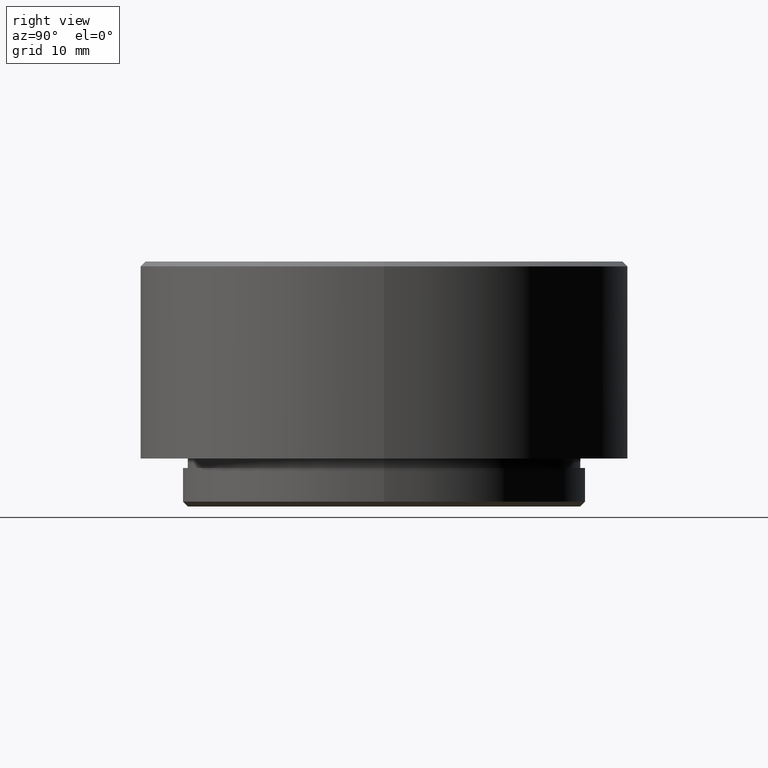
[diagram: clean part render]
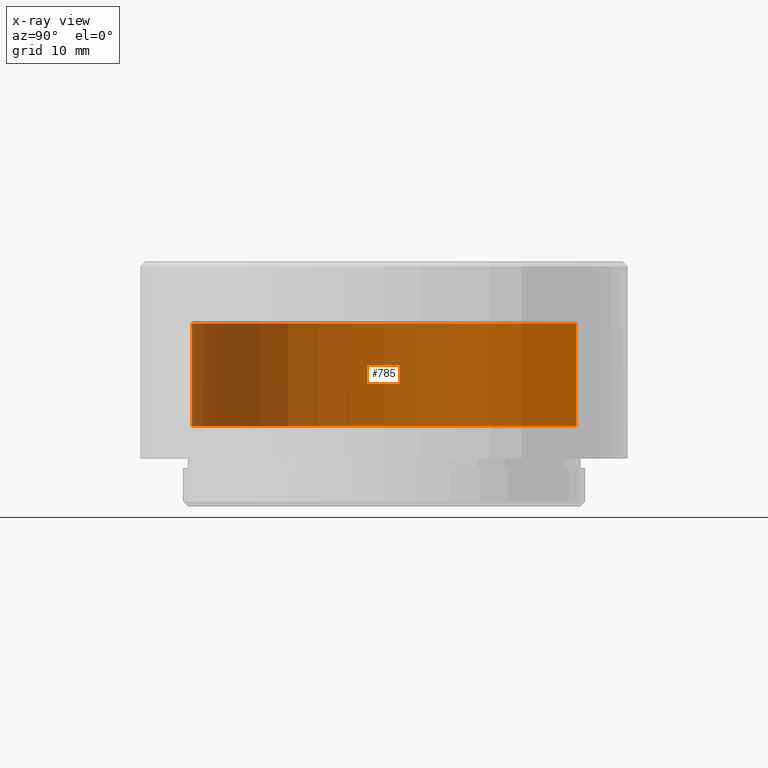
[diagram: x-ray — body ghosted, one internal face saturated and labeled with its STEP entity id]
A machine part, right view, then the same camera in x-ray: the body is ghosted and one INTERNAL B-rep face — a face not visible from any outside direction — is saturated and labeled: STEP entity #785.
In plain terms, the highlighted cylindrical surface (partial cylindrical patch) has radius 20 mm, axis along (0, -0, 1).
Its self-contained STEP definition (entity closure, byte-faithful):
#89 = EDGE_CURVE ( 'NONE', #509, #130, #488, .T. ) ;
#130 = VERTEX_POINT ( 'NONE', #1540 ) ;
#175 = CARTESIAN_POINT ( 'NONE',  ( 2.449293598294704935E-15, 20.00000000000000000, 2.449293598294704935E-15 ) ) ;
#189 = EDGE_CURVE ( 'NONE', #1491, #1149, #950, .T. ) ;
#277 = DIRECTION ( 'NONE',  ( 0.000000000000000000, -1.224646799147351975E-16, 1.000000000000000000 ) ) ;
#281 = EDGE_CURVE ( 'NONE', #1491, #130, #305, .T. ) ;
#300 = VECTOR ( 'NONE', #375, 1000.000000000000000 ) ;
#305 = LINE ( 'NONE', #175, #506 ) ;
#350 = DIRECTION ( 'NONE',  ( 0.000000000000000000, 1.301042606982603842E-16, -1.000000000000000000 ) ) ;
#375 = DIRECTION ( 'NONE',  ( 0.000000000000000000, -1.224646799147351975E-16, 1.000000000000000000 ) ) ;
#387 = LINE ( 'NONE', #1427, #300 ) ;
#452 = ORIENTED_EDGE ( 'NONE', *, *, #1432, .T. ) ;
#488 = CIRCLE ( 'NONE', #1484, 20.00000000000000000 ) ;
#506 = VECTOR ( 'NONE', #699, 1000.000000000000000 ) ;
#509 = VERTEX_POINT ( 'NONE', #773 ) ;
#697 = DIRECTION ( 'NONE',  ( 0.000000000000000000, -1.000000000000000000, -1.301042606982605321E-16 ) ) ;
#699 = DIRECTION ( 'NONE',  ( 0.000000000000000000, -1.224646799147351975E-16, 1.000000000000000000 ) ) ;
#773 = CARTESIAN_POINT ( 'NONE',  ( 2.449293598294704935E-15, -20.00000000000000000, 3.484894504811105076 ) ) ;
#785 = ADVANCED_FACE ( 'NONE', ( #812 ), #1068, .T. ) ;
#812 = FACE_OUTER_BOUND ( 'NONE', #937, .T. ) ;
#836 = CARTESIAN_POINT ( 'NONE',  ( 0.000000000000000000, -20.00000000000000000, -7.223537170846109134 ) ) ;
#881 = DIRECTION ( 'NONE',  ( 0.000000000000000000, 1.000000000000000000, 1.301042606982605321E-16 ) ) ;
#888 = CARTESIAN_POINT ( 'NONE',  ( 2.449293598294709668E-15, 20.00000000000000000, -7.223537170846109134 ) ) ;
#937 = EDGE_LOOP ( 'NONE', ( #1258, #1307, #452, #1644 ) ) ;
#950 = CIRCLE ( 'NONE', #1447, 20.00000000000000000 ) ;
#957 = CARTESIAN_POINT ( 'NONE',  ( 0.000000000000000000, 8.846281674798620320E-16, -7.223537170846109134 ) ) ;
#1068 = CYLINDRICAL_SURFACE ( 'NONE', #1584, 20.00000000000000000 ) ;
#1078 = DIRECTION ( 'NONE',  ( 0.000000000000000000, -1.000000000000000000, -1.224646799147351975E-16 ) ) ;
#1149 = VERTEX_POINT ( 'NONE', #836 ) ;
#1258 = ORIENTED_EDGE ( 'NONE', *, *, #281, .F. ) ;
#1307 = ORIENTED_EDGE ( 'NONE', *, *, #189, .T. ) ;
#1348 = DIRECTION ( 'NONE',  ( 0.000000000000000000, -1.301042606982603842E-16, 1.000000000000000000 ) ) ;
#1427 = CARTESIAN_POINT ( 'NONE',  ( 0.000000000000000000, -20.00000000000000000, -2.449293598294704935E-15 ) ) ;
#1432 = EDGE_CURVE ( 'NONE', #1149, #509, #387, .T. ) ;
#1447 = AXIS2_PLACEMENT_3D ( 'NONE', #957, #1348, #697 ) ;
#1484 = AXIS2_PLACEMENT_3D ( 'NONE', #1658, #350, #881 ) ;
#1491 = VERTEX_POINT ( 'NONE', #888 ) ;
#1540 = CARTESIAN_POINT ( 'NONE',  ( 0.000000000000000000, 20.00000000000000000, 3.484894504811109517 ) ) ;
#1584 = AXIS2_PLACEMENT_3D ( 'NONE', #1598, #277, #1078 ) ;
#1598 = CARTESIAN_POINT ( 'NONE',  ( 0.000000000000000000, 0.000000000000000000, 0.000000000000000000 ) ) ;
#1644 = ORIENTED_EDGE ( 'NONE', *, *, #89, .T. ) ;
#1658 = CARTESIAN_POINT ( 'NONE',  ( 0.000000000000000000, -4.267764900683119975E-16, 3.484894504811105076 ) ) ;